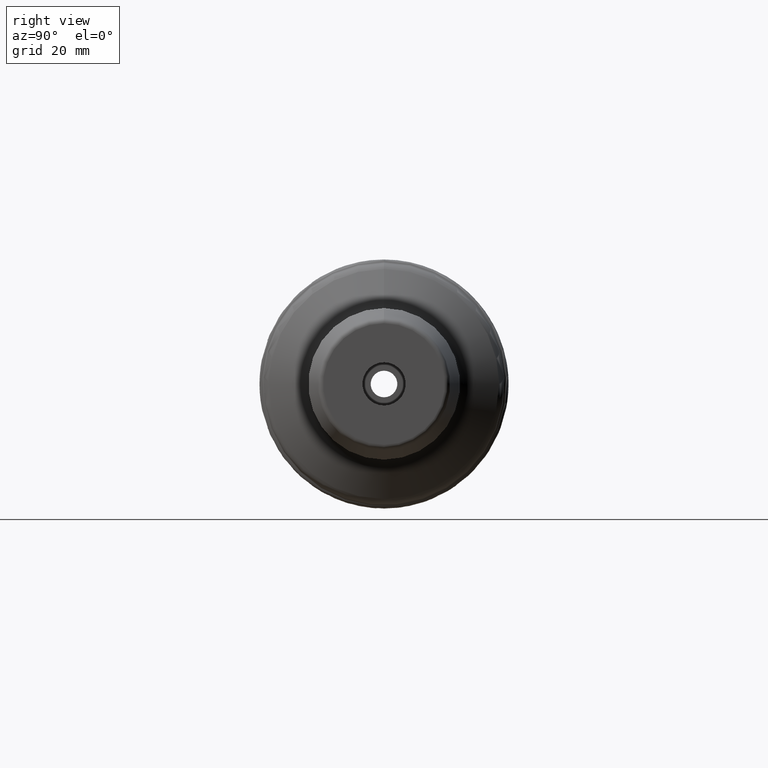
[diagram: clean part render]
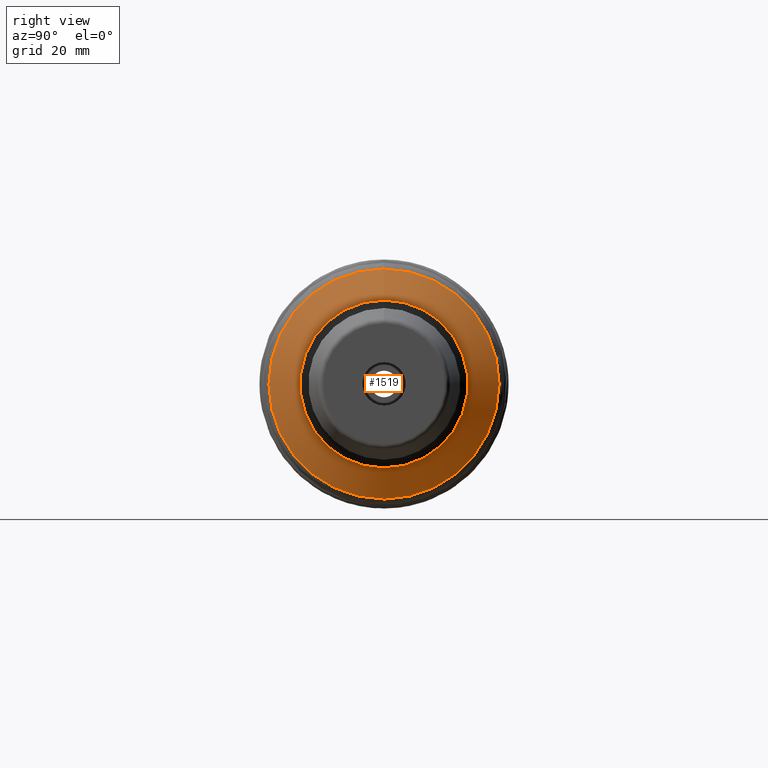
[diagram: same view with one face highlighted and labeled with its STEP entity id]
A machine part, right view. The second image highlights one B-rep face of the part: STEP entity #1519.
In plain terms, the highlighted conical surface has half-angle 60 deg.
Its self-contained STEP definition (entity closure, byte-faithful):
#106=CONICAL_SURFACE('',#1675,18.125,1.0471975511966);
#129=LINE('',#2462,#204);
#204=VECTOR('',#1977,18.125);
#331=FACE_OUTER_BOUND('',#427,.T.);
#427=EDGE_LOOP('',(#1094,#1095,#1096,#1097));
#544=CIRCLE('',#1673,21.25);
#546=CIRCLE('',#1676,15.5);
#641=VERTEX_POINT('',#2456);
#642=VERTEX_POINT('',#2460);
#809=EDGE_CURVE('',#641,#641,#544,.T.);
#811=EDGE_CURVE('',#642,#642,#546,.T.);
#812=EDGE_CURVE('',#642,#641,#129,.T.);
#1094=ORIENTED_EDGE('',*,*,#811,.F.);
#1095=ORIENTED_EDGE('',*,*,#812,.T.);
#1096=ORIENTED_EDGE('',*,*,#809,.F.);
#1097=ORIENTED_EDGE('',*,*,#812,.F.);
#1519=ADVANCED_FACE('',(#331),#106,.T.);
#1673=AXIS2_PLACEMENT_3D('',#2457,#1969,#1970);
#1675=AXIS2_PLACEMENT_3D('',#2459,#1973,#1974);
#1676=AXIS2_PLACEMENT_3D('',#2461,#1975,#1976);
#1969=DIRECTION('center_axis',(-1.,0.,0.));
#1970=DIRECTION('ref_axis',(0.,0.,1.));
#1973=DIRECTION('center_axis',(-1.,0.,0.));
#1974=DIRECTION('ref_axis',(0.,0.,-1.));
#1975=DIRECTION('center_axis',(1.,0.,0.));
#1976=DIRECTION('ref_axis',(0.,0.,1.));
#1977=DIRECTION('',(-0.500000000000001,-1.06057523872491E-16,0.866025403784438));
#2456=CARTESIAN_POINT('',(35.8142105483752,-2.60237444818813E-15,21.25));
#2457=CARTESIAN_POINT('Origin',(35.8142105483752,-2.60237444818813E-15,
0.));
#2459=CARTESIAN_POINT('Origin',(37.6184301395928,0.,0.));
#2460=CARTESIAN_POINT('',(39.1339745962156,-1.8982025386784E-15,15.5));
#2461=CARTESIAN_POINT('Origin',(39.1339745962156,-1.8982025386784E-15,0.));
#2462=CARTESIAN_POINT('',(37.6184301395928,-2.21967232345458E-15,18.125));